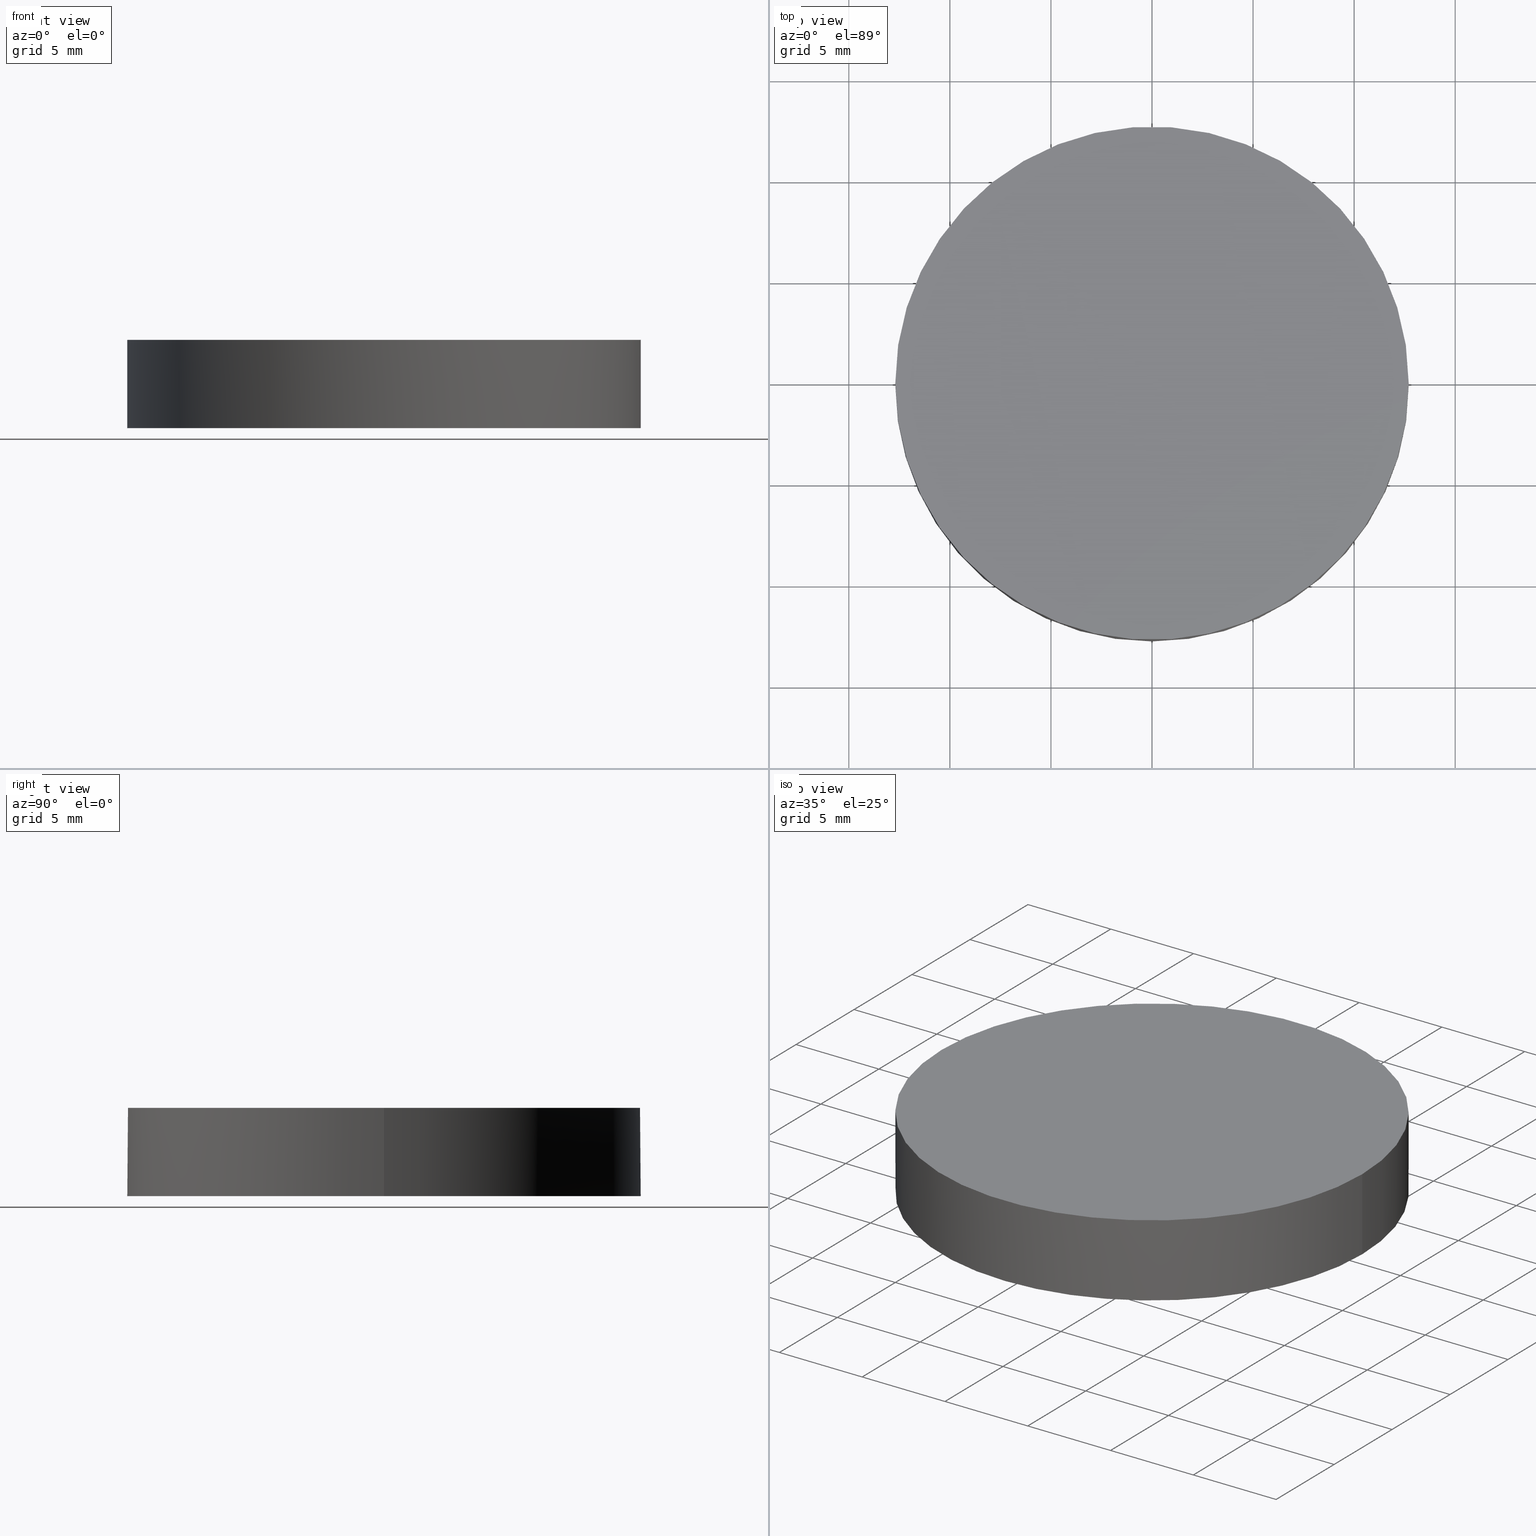
[diagram: canonical four-view strip — front | top / right | iso, engineering-drawing reading convention]
A machine part, canonical four-view strip (front | top / right | iso — engineering-drawing reading convention). The complete STEP part file that produces these views, byte-faithful:
ISO-10303-21;
HEADER;
FILE_DESCRIPTION (( 'STEP AP203' ),
    '1' );
FILE_NAME ('112-1215E UVFS pl-cv 25.4 F-125.STEP',
    '2019-01-16T15:04:51',
    ( '' ),
    ( '' ),
    'SwSTEP 2.0',
    'SolidWorks 2017',
    '' );
FILE_SCHEMA (( 'CONFIG_CONTROL_DESIGN' ));
ENDSEC;

DATA;
#1 = VECTOR ( 'NONE', #193, 1000.000000000000000 ) ;
#2 = CC_DESIGN_DATE_AND_TIME_ASSIGNMENT ( #230, #179, ( #86 ) ) ;
#3 =( BOUNDED_SURFACE ( )  B_SPLINE_SURFACE ( 3, 3, ( 
 ( #120, #194, #209, #82 ),
 ( #173, #22, #156, #138 ),
 ( #224, #40, #23, #6 ),
 ( #85, #208, #190, #103 ) ),
 .UNSPECIFIED., .F., .F., .F. ) 
 B_SPLINE_SURFACE_WITH_KNOTS ( ( 4, 4 ),
 ( 4, 4 ),
 ( 0.0000000000000000000, 1.000000000000000000 ),
 ( 0.0000000000000000000, 1.000000000000000000 ),
 .UNSPECIFIED. ) 
 GEOMETRIC_REPRESENTATION_ITEM ( )  RATIONAL_B_SPLINE_SURFACE ( (
 ( 1.000000000000000000, 0.9961030506548106400, 0.9961030506548106400, 1.000000000000000000),
 ( 0.9842725484696544000, 0.9804368882064077300, 0.9804368882064077300, 0.9842725484696544000),
 ( 0.9842725484696544000, 0.9804368882064077300, 0.9804368882064077300, 0.9842725484696544000),
 ( 1.000000000000000000, 0.9961030506548106400, 0.9961030506548106400, 1.000000000000000000) ) ) 
 REPRESENTATION_ITEM ( '' )  SURFACE ( )  );
#4 = PRODUCT_RELATED_PRODUCT_CATEGORY ( 'detail', '', ( #157 ) ) ;
#5 = CARTESIAN_POINT ( 'NONE',  ( -12.69999999999999900, 3.997792089092478900E-015, -1.370941700092870100 ) ) ;
#6 = CARTESIAN_POINT ( 'NONE',  ( 12.87707535386159200, -4.351775892739208700, -0.9230143240595769500 ) ) ;
#7 = CC_DESIGN_APPROVAL ( #221, ( #17 ) ) ;
#8 = CARTESIAN_POINT ( 'NONE',  ( 12.69999999999999900, 2.442490654175340100E-015, -1.370941700092870100 ) ) ;
#9 = ORIENTED_EDGE ( 'NONE', *, *, #29, .F. ) ;
#10 = APPLICATION_PROTOCOL_DEFINITION ( 'international standard', 'config_control_design', 1994, #124 ) ;
#11 = CARTESIAN_POINT ( 'NONE',  ( 0.0000000000000000000, 26.11199999999999800, 3.000000000000000000 ) ) ;
#12 = EDGE_CURVE ( 'NONE', #130, #113, #203, .T. ) ;
#13 = CIRCLE ( 'NONE', #231, 12.69999999999999900 ) ;
#14 = DIRECTION ( 'NONE',  ( 0.0000000000000000000, 0.0000000000000000000, 1.000000000000000000 ) ) ;
#15 = ORGANIZATION ( 'UNSPECIFIED', 'UNSPECIFIED', '' ) ;
#16 = LINE ( 'NONE', #8, #1 ) ;
#17 = PRODUCT_DEFINITION ( 'UNKNOWN', '', #58, #235 ) ;
#18 = ORIENTED_EDGE ( 'NONE', *, *, #21, .F. ) ;
#19 = DATE_AND_TIME ( #184, #152 ) ;
#20 = CIRCLE ( 'NONE', #135, 12.69999999999999900 ) ;
#21 = EDGE_CURVE ( 'NONE', #168, #74, #13, .T. ) ;
#22 = CARTESIAN_POINT ( 'NONE',  ( 4.334487914191679000, 4.351775892739211400, 0.4754479041532155800 ) ) ;
#23 = CARTESIAN_POINT ( 'NONE',  ( 8.643638908624963000, -4.351775892739209600, 0.007470142450247217000 ) ) ;
#24 = ADVANCED_FACE ( 'NONE', ( #167 ), #207, .F. ) ;
#25 = CARTESIAN_POINT ( 'NONE',  ( -1.421085471520200100E-014, 3.552713678800500100E-015, -59.50999999999999800 ) ) ;
#26 = DIRECTION ( 'NONE',  ( 1.000000000000000000, 0.0000000000000000000, 0.0000000000000000000 ) ) ;
#27 = CARTESIAN_POINT ( 'NONE',  ( -8.643638908625003800, -4.351775892739209600, 0.007470142450254155900 ) ) ;
#28 = APPROVAL_ROLE ( '' ) ;
#29 = EDGE_CURVE ( 'NONE', #168, #220, #202, .T. ) ;
#30 = APPROVAL_ROLE ( '' ) ;
#31 = PERSON_AND_ORGANIZATION ( #211, #15 ) ;
#32 = DIRECTION ( 'NONE',  ( 1.000000000000000000, 0.0000000000000000000, 0.0000000000000000000 ) ) ;
#33 = CARTESIAN_POINT ( 'NONE',  ( 12.69999999999999900, 2.442490654175340100E-015, -1.370941700092870100 ) ) ;
#34 = DIRECTION ( 'NONE',  ( 0.0000000000000000000, 0.0000000000000000000, 1.000000000000000000 ) ) ;
#35 = AXIS2_PLACEMENT_3D ( 'NONE', #25, #161, #210 ) ;
#36 = DATE_AND_TIME ( #148, #89 ) ;
#37 = AXIS2_PLACEMENT_3D ( 'NONE', #188, #79, #205 ) ;
#38 = PERSON_AND_ORGANIZATION ( #211, #15 ) ;
#39 = FACE_OUTER_BOUND ( 'NONE', #100, .T. ) ;
#40 = CARTESIAN_POINT ( 'NONE',  ( 4.334487914191678100, -4.351775892739209600, 0.4754479041532090300 ) ) ;
#41 = ADVANCED_BREP_SHAPE_REPRESENTATION ( '112-1215E UVFS pl-cv 25.4 F-125', ( #196, #232 ), #198 ) ;
#42 = CARTESIAN_POINT ( 'NONE',  ( -8.372831571571831300, -12.85000064494567900, -1.857226863961664000 ) ) ;
#43 = CARTESIAN_POINT ( 'NONE',  ( -8.643638908625003800, 4.351775892739211400, 0.007470142450260661100 ) ) ;
#44 = CARTESIAN_POINT ( 'NONE',  ( -2.428612866367529900E-014, -12.85000064494567900, -1.403910960856293900 ) ) ;
#45 = CC_DESIGN_DATE_AND_TIME_ASSIGNMENT ( #129, #140, ( #17 ) ) ;
#46 = DIRECTION ( 'NONE',  ( -0.0000000000000000000, -0.0000000000000000000, -1.000000000000000000 ) ) ;
#47 = COORDINATED_UNIVERSAL_TIME_OFFSET ( 2, 0, .AHEAD. ) ;
#48 = ORIENTED_EDGE ( 'NONE', *, *, #132, .T. ) ;
#49 = CARTESIAN_POINT ( 'NONE',  ( 4.996003610813200500E-016, 2.442490654175340100E-015, -1.370941700092870100 ) ) ;
#50 = PRODUCT_DEFINITION_SHAPE ( 'NONE', 'NONE',  #17 ) ;
#51 = PERSON_AND_ORGANIZATION_ROLE ( 'creator' ) ;
#52 = DIRECTION ( 'NONE',  ( 0.0000000000000000000, 0.0000000000000000000, 1.000000000000000000 ) ) ;
#53 = APPROVAL_STATUS ( 'not_yet_approved' ) ;
#54 = EDGE_LOOP ( 'NONE', ( #126, #218, #80, #228, #107 ) ) ;
#55 = CC_DESIGN_PERSON_AND_ORGANIZATION_ASSIGNMENT ( #115, #71, ( #157 ) ) ;
#56 = CC_DESIGN_SECURITY_CLASSIFICATION ( #86, ( #58 ) ) ;
#57 = DIRECTION ( 'NONE',  ( 0.0000000000000000000, 0.0000000000000000000, 1.000000000000000000 ) ) ;
#58 = PRODUCT_DEFINITION_FORMATION_WITH_SPECIFIED_SOURCE ( 'ANY', '', #157, .NOT_KNOWN. ) ;
#59 = CARTESIAN_POINT ( 'NONE',  ( -12.47363340973639200, 12.85000064494568200, -2.758559022837086900 ) ) ;
#60 = CIRCLE ( 'NONE', #63, 12.69999999999999900 ) ;
#61 = CARTESIAN_POINT ( 'NONE',  ( -4.334487914191719900, 4.351775892739212300, 0.4754479041532194100 ) ) ;
#62 = ORIENTED_EDGE ( 'NONE', *, *, #109, .F. ) ;
#63 = AXIS2_PLACEMENT_3D ( 'NONE', #49, #87, #162 ) ;
#64 = CARTESIAN_POINT ( 'NONE',  ( -12.47363340973639000, -12.85000064494567900, -2.758559022837094000 ) ) ;
#65 = APPROVAL_PERSON_ORGANIZATION ( #186, #204, #28 ) ;
#66 = ORIENTED_EDGE ( 'NONE', *, *, #96, .T. ) ;
#67 = DIRECTION ( 'NONE',  ( 1.000000000000000000, 0.0000000000000000000, 0.0000000000000000000 ) ) ;
#68 =( NAMED_UNIT ( * ) PLANE_ANGLE_UNIT ( ) SI_UNIT ( $, .RADIAN. ) );
#69 = APPROVAL_ROLE ( '' ) ;
#70 = PERSON_AND_ORGANIZATION_ROLE ( 'design_supplier' ) ;
#71 = PERSON_AND_ORGANIZATION_ROLE ( 'design_owner' ) ;
#72 = ORIENTED_EDGE ( 'NONE', *, *, #12, .F. ) ;
#73 = LOCAL_TIME ( 17, 4, 51.00000000000000000, #78 ) ;
#74 = VERTEX_POINT ( 'NONE', #5 ) ;
#75 = CARTESIAN_POINT ( 'NONE',  ( -8.372831571571831300, 12.85000064494568200, -1.857226863961656700 ) ) ;
#76 = APPROVAL_PERSON_ORGANIZATION ( #31, #144, #69 ) ;
#77 = AXIS2_PLACEMENT_3D ( 'NONE', #216, #229, #146 ) ;
#78 = COORDINATED_UNIVERSAL_TIME_OFFSET ( 2, 0, .AHEAD. ) ;
#79 = DIRECTION ( 'NONE',  ( -0.0000000000000000000, -0.0000000000000000000, -1.000000000000000000 ) ) ;
#80 = ORIENTED_EDGE ( 'NONE', *, *, #109, .T. ) ;
#81 = CARTESIAN_POINT ( 'NONE',  ( -12.87707535386163800, -4.351775892739208700, -0.9230143240595714000 ) ) ;
#82 = CARTESIAN_POINT ( 'NONE',  ( 12.47363340973635100, 12.85000064494568200, -2.758559022837093100 ) ) ;
#83 = LOCAL_TIME ( 17, 4, 51.00000000000000000, #47 ) ;
#84 = DIRECTION ( 'NONE',  ( 0.0000000000000000000, 0.0000000000000000000, 1.000000000000000000 ) ) ;
#85 = CARTESIAN_POINT ( 'NONE',  ( -1.421085471520199700E-014, -12.85000064494567900, -1.403910960856298500 ) ) ;
#86 = SECURITY_CLASSIFICATION ( '', '', #197 ) ;
#87 = DIRECTION ( 'NONE',  ( 0.0000000000000000000, 0.0000000000000000000, 1.000000000000000000 ) ) ;
#88 = PLANE ( 'NONE',  #92 ) ;
#89 = LOCAL_TIME ( 17, 4, 51.00000000000000000, #112 ) ;
#90 = CYLINDRICAL_SURFACE ( 'NONE', #183, 12.69999999999999900 ) ;
#91 = APPROVAL_STATUS ( 'not_yet_approved' ) ;
#92 = AXIS2_PLACEMENT_3D ( 'NONE', #11, #225, #180 ) ;
#93 = PERSON_AND_ORGANIZATION_ROLE ( 'classification_officer' ) ;
#94 = APPROVAL_DATE_TIME ( #19, #144 ) ;
#95 = PERSON_AND_ORGANIZATION ( #211, #15 ) ;
#96 = EDGE_CURVE ( 'NONE', #74, #130, #234, .T. ) ;
#97 = DIRECTION ( 'NONE',  ( 1.000000000000000000, 0.0000000000000000000, 0.0000000000000000000 ) ) ;
#98 = CC_DESIGN_PERSON_AND_ORGANIZATION_ASSIGNMENT ( #125, #93, ( #86 ) ) ;
#99 = DATE_AND_TIME ( #227, #73 ) ;
#100 = EDGE_LOOP ( 'NONE', ( #134, #72 ) ) ;
#101 = CC_DESIGN_APPROVAL ( #144, ( #86 ) ) ;
#102 = CARTESIAN_POINT ( 'NONE',  ( -12.87707535386163800, 4.351775892739210500, -0.9230143240595649600 ) ) ;
#103 = CARTESIAN_POINT ( 'NONE',  ( 12.47363340973634900, -12.85000064494567900, -2.758559022837099800 ) ) ;
#104 = ADVANCED_FACE ( 'NONE', ( #195 ), #3, .F. ) ;
#105 = CARTESIAN_POINT ( 'NONE',  ( -12.69999999999999900, 3.997792089092478900E-015, 3.000000000000000400 ) ) ;
#106 = APPROVAL_DATE_TIME ( #36, #221 ) ;
#107 = ORIENTED_EDGE ( 'NONE', *, *, #123, .T. ) ;
#108 = MECHANICAL_CONTEXT ( 'NONE', #124, 'mechanical' ) ;
#109 = EDGE_CURVE ( 'NONE', #220, #171, #20, .T. ) ;
#110 = APPLICATION_CONTEXT ( 'configuration controlled 3d designs of mechanical parts and assemblies' ) ;
#111 = CARTESIAN_POINT ( 'NONE',  ( -1.421085471520199700E-014, 12.70000000000000600, -1.370941700092875000 ) ) ;
#112 = COORDINATED_UNIVERSAL_TIME_OFFSET ( 2, 0, .AHEAD. ) ;
#113 = VERTEX_POINT ( 'NONE', #121 ) ;
#114 = EDGE_LOOP ( 'NONE', ( #9, #217, #62 ) ) ;
#115 = PERSON_AND_ORGANIZATION ( #211, #15 ) ;
#116 = CIRCLE ( 'NONE', #169, 12.69999999999999900 ) ;
#117 = CC_DESIGN_PERSON_AND_ORGANIZATION_ASSIGNMENT ( #38, #51, ( #17 ) ) ;
#118 = CARTESIAN_POINT ( 'NONE',  ( -4.198687339695238700, 12.85000064494568200, -1.403910960856287200 ) ) ;
#119 = FACE_OUTER_BOUND ( 'NONE', #153, .T. ) ;
#120 = CARTESIAN_POINT ( 'NONE',  ( -1.421085471520199700E-014, 12.85000064494568200, -1.403910960856291600 ) ) ;
#121 = CARTESIAN_POINT ( 'NONE',  ( 12.69999999999999900, 2.442490654175340100E-015, 3.000000000000000400 ) ) ;
#122 = CARTESIAN_POINT ( 'NONE',  ( -2.428612866367529600E-014, 4.351775892739211400, 0.4754479041532200800 ) ) ;
#123 = EDGE_CURVE ( 'NONE', #113, #130, #116, .T. ) ;
#124 = APPLICATION_CONTEXT ( 'configuration controlled 3d designs of mechanical parts and assemblies' ) ;
#125 = PERSON_AND_ORGANIZATION ( #211, #15 ) ;
#126 = ORIENTED_EDGE ( 'NONE', *, *, #96, .F. ) ;
#127 = APPLICATION_PROTOCOL_DEFINITION ( 'international standard', 'config_control_design', 1994, #110 ) ;
#128 = EDGE_CURVE ( 'NONE', #171, #113, #16, .T. ) ;
#129 = DATE_AND_TIME ( #199, #170 ) ;
#130 = VERTEX_POINT ( 'NONE', #105 ) ;
#131 = PERSON_AND_ORGANIZATION ( #211, #15 ) ;
#132 = EDGE_CURVE ( 'NONE', #171, #168, #60, .T. ) ;
#133 = APPROVAL_DATE_TIME ( #99, #204 ) ;
#134 = ORIENTED_EDGE ( 'NONE', *, *, #123, .F. ) ;
#135 = AXIS2_PLACEMENT_3D ( 'NONE', #136, #84, #26 ) ;
#136 = CARTESIAN_POINT ( 'NONE',  ( 4.996003610813200500E-016, 2.442490654175340100E-015, -1.370941700092870100 ) ) ;
#137 = CARTESIAN_POINT ( 'NONE',  ( -4.334487914191719000, -4.351775892739208700, 0.4754479041532131400 ) ) ;
#138 = CARTESIAN_POINT ( 'NONE',  ( 12.87707535386159400, 4.351775892739210500, -0.9230143240595705100 ) ) ;
#139 = CARTESIAN_POINT ( 'NONE',  ( 4.996003610813200500E-016, 2.442490654175340100E-015, 3.000000000000000400 ) ) ;
#140 = DATE_TIME_ROLE ( 'creation_date' ) ;
#141 = APPROVAL_PERSON_ORGANIZATION ( #177, #221, #30 ) ;
#142 = CYLINDRICAL_SURFACE ( 'NONE', #77, 12.69999999999999900 ) ;
#143 =( LENGTH_UNIT ( ) NAMED_UNIT ( * ) SI_UNIT ( .MILLI., .METRE. ) );
#144 = APPROVAL ( #91, 'UNSPECIFIED' ) ;
#145 = APPROVAL_STATUS ( 'not_yet_approved' ) ;
#146 = DIRECTION ( 'NONE',  ( 1.000000000000000000, 0.0000000000000000000, 0.0000000000000000000 ) ) ;
#147 = EDGE_CURVE ( 'NONE', #74, #220, #149, .T. ) ;
#148 = CALENDAR_DATE ( 2019, 16, 1 ) ;
#149 = CIRCLE ( 'NONE', #150, 12.69999999999999900 ) ;
#150 = AXIS2_PLACEMENT_3D ( 'NONE', #164, #14, #163 ) ;
#151 = CARTESIAN_POINT ( 'NONE',  ( 4.996003610813200500E-016, 2.442490654175340100E-015, -1.370941700092870100 ) ) ;
#152 = LOCAL_TIME ( 17, 4, 51.00000000000000000, #219 ) ;
#153 = EDGE_LOOP ( 'NONE', ( #48, #178, #66, #166, #206 ) ) ;
#154 = CARTESIAN_POINT ( 'NONE',  ( -12.69999999999999900, 3.997792089092478900E-015, -1.370941700092870100 ) ) ;
#155 = ADVANCED_FACE ( 'NONE', ( #119 ), #90, .T. ) ;
#156 = CARTESIAN_POINT ( 'NONE',  ( 8.643638908624963000, 4.351775892739211400, 0.007470142450253722300 ) ) ;
#157 = PRODUCT ( '112-1215E UVFS pl-cv 25.4 F-125', '112-1215E UVFS pl-cv 25.4 F-125', '', ( #108 ) ) ;
#158 = CARTESIAN_POINT ( 'NONE',  ( -4.198687339695237800, -12.85000064494567900, -1.403910960856294500 ) ) ;
#159 = ADVANCED_FACE ( 'NONE', ( #39 ), #88, .T. ) ;
#160 = ORIENTED_EDGE ( 'NONE', *, *, #147, .F. ) ;
#161 = DIRECTION ( 'NONE',  ( 1.000000000000000000, 0.0000000000000000000, 0.0000000000000000000 ) ) ;
#162 = DIRECTION ( 'NONE',  ( 1.000000000000000000, 0.0000000000000000000, 0.0000000000000000000 ) ) ;
#163 = DIRECTION ( 'NONE',  ( 1.000000000000000000, 0.0000000000000000000, 0.0000000000000000000 ) ) ;
#164 = CARTESIAN_POINT ( 'NONE',  ( 4.996003610813200500E-016, 2.442490654175340100E-015, -1.370941700092870100 ) ) ;
#165 = CARTESIAN_POINT ( 'NONE',  ( 0.0000000000000000000, 0.0000000000000000000, 0.0000000000000000000 ) ) ;
#166 = ORIENTED_EDGE ( 'NONE', *, *, #12, .T. ) ;
#167 = FACE_OUTER_BOUND ( 'NONE', #212, .T. ) ;
#168 = VERTEX_POINT ( 'NONE', #111 ) ;
#169 = AXIS2_PLACEMENT_3D ( 'NONE', #139, #46, #213 ) ;
#170 = LOCAL_TIME ( 17, 4, 51.00000000000000000, #222 ) ;
#171 = VERTEX_POINT ( 'NONE', #33 ) ;
#172 = DIRECTION ( 'NONE',  ( 0.0000000000000000000, 0.0000000000000000000, 1.000000000000000000 ) ) ;
#173 = CARTESIAN_POINT ( 'NONE',  ( -1.421085471520199900E-014, 4.351775892739210500, 0.4754479041532154700 ) ) ;
#174 = SHAPE_DEFINITION_REPRESENTATION ( #50, #41 ) ;
#175 = CARTESIAN_POINT ( 'NONE',  ( -1.421085471520199700E-014, -12.69999999999999900, -1.370941700092875000 ) ) ;
#176 = CARTESIAN_POINT ( 'NONE',  ( 4.996003610813200500E-016, 2.442490654175340100E-015, -1.370941700092870100 ) ) ;
#177 = PERSON_AND_ORGANIZATION ( #211, #15 ) ;
#178 = ORIENTED_EDGE ( 'NONE', *, *, #21, .T. ) ;
#179 = DATE_TIME_ROLE ( 'classification_date' ) ;
#180 = DIRECTION ( 'NONE',  ( 1.000000000000000000, 0.0000000000000000000, -0.0000000000000000000 ) ) ;
#181 = PERSON_AND_ORGANIZATION_ROLE ( 'creator' ) ;
#182 = CALENDAR_DATE ( 2019, 16, 1 ) ;
#183 = AXIS2_PLACEMENT_3D ( 'NONE', #176, #34, #67 ) ;
#184 = CALENDAR_DATE ( 2019, 16, 1 ) ;
#185 = CARTESIAN_POINT ( 'NONE',  ( -2.428612866367529900E-014, 12.85000064494568200, -1.403910960856286500 ) ) ;
#186 = PERSON_AND_ORGANIZATION ( #211, #15 ) ;
#187 = ORIENTED_EDGE ( 'NONE', *, *, #29, .T. ) ;
#188 = CARTESIAN_POINT ( 'NONE',  ( 4.996003610813200500E-016, 2.442490654175340100E-015, 3.000000000000000400 ) ) ;
#189 = CC_DESIGN_APPROVAL ( #204, ( #58 ) ) ;
#190 = CARTESIAN_POINT ( 'NONE',  ( 8.372831571571790500, -12.85000064494567900, -1.857226863961670900 ) ) ;
#191 = CARTESIAN_POINT ( 'NONE',  ( -2.428612866367529600E-014, -4.351775892739207800, 0.4754479041532137500 ) ) ;
#192 = UNCERTAINTY_MEASURE_WITH_UNIT (LENGTH_MEASURE( 1.000000000000000100E-005 ), #143, 'distance_accuracy_value', 'NONE');
#193 = DIRECTION ( 'NONE',  ( 0.0000000000000000000, 0.0000000000000000000, 1.000000000000000000 ) ) ;
#194 = CARTESIAN_POINT ( 'NONE',  ( 4.198687339695200500, 12.85000064494568200, -1.403910960856291600 ) ) ;
#195 = FACE_OUTER_BOUND ( 'NONE', #114, .T. ) ;
#196 = MANIFOLD_SOLID_BREP ( 'Imported1', #200 ) ;
#197 = SECURITY_CLASSIFICATION_LEVEL ( 'unclassified' ) ;
#198 =( GEOMETRIC_REPRESENTATION_CONTEXT ( 3 ) GLOBAL_UNCERTAINTY_ASSIGNED_CONTEXT ( ( #192 ) ) GLOBAL_UNIT_ASSIGNED_CONTEXT ( ( #143, #68, #215 ) ) REPRESENTATION_CONTEXT ( 'NONE', 'WORKASPACE' ) );
#199 = CALENDAR_DATE ( 2019, 16, 1 ) ;
#200 = CLOSED_SHELL ( 'NONE', ( #24, #155, #104, #214, #159 ) ) ;
#201 = CC_DESIGN_PERSON_AND_ORGANIZATION_ASSIGNMENT ( #131, #70, ( #58 ) ) ;
#202 = CIRCLE ( 'NONE', #35, 59.50999999999999800 ) ;
#203 = CIRCLE ( 'NONE', #37, 12.69999999999999900 ) ;
#204 = APPROVAL ( #53, 'UNSPECIFIED' ) ;
#205 = DIRECTION ( 'NONE',  ( 1.000000000000000000, 0.0000000000000000000, 0.0000000000000000000 ) ) ;
#206 = ORIENTED_EDGE ( 'NONE', *, *, #128, .F. ) ;
#207 =( BOUNDED_SURFACE ( )  B_SPLINE_SURFACE ( 3, 3, ( 
 ( #59, #75, #118, #185 ),
 ( #102, #43, #61, #122 ),
 ( #81, #27, #137, #191 ),
 ( #64, #42, #158, #44 ) ),
 .UNSPECIFIED., .F., .F., .F. ) 
 B_SPLINE_SURFACE_WITH_KNOTS ( ( 4, 4 ),
 ( 4, 4 ),
 ( 0.0000000000000000000, 1.000000000000000000 ),
 ( 0.0000000000000000000, 1.000000000000000000 ),
 .UNSPECIFIED. ) 
 GEOMETRIC_REPRESENTATION_ITEM ( )  RATIONAL_B_SPLINE_SURFACE ( (
 ( 1.000000000000000000, 0.9961030506548106400, 0.9961030506548106400, 1.000000000000000000),
 ( 0.9842725484696544000, 0.9804368882064077300, 0.9804368882064077300, 0.9842725484696544000),
 ( 0.9842725484696544000, 0.9804368882064077300, 0.9804368882064077300, 0.9842725484696544000),
 ( 1.000000000000000000, 0.9961030506548106400, 0.9961030506548106400, 1.000000000000000000) ) ) 
 REPRESENTATION_ITEM ( '' )  SURFACE ( )  );
#208 = CARTESIAN_POINT ( 'NONE',  ( 4.198687339695200500, -12.85000064494567900, -1.403910960856298500 ) ) ;
#209 = CARTESIAN_POINT ( 'NONE',  ( 8.372831571571790500, 12.85000064494568200, -1.857226863961664300 ) ) ;
#210 = DIRECTION ( 'NONE',  ( 0.0000000000000000000, 1.000000000000000000, -2.332009377888499000E-016 ) ) ;
#211 = PERSON ( 'UNSPECIFIED', 'UNSPECIFIED', 'UNSPECIFIED', ('UNSPECIFIED'), ('UNSPECIFIED'), ('UNSPECIFIED') ) ;
#212 = EDGE_LOOP ( 'NONE', ( #18, #187, #160 ) ) ;
#213 = DIRECTION ( 'NONE',  ( 1.000000000000000000, 0.0000000000000000000, 0.0000000000000000000 ) ) ;
#214 = ADVANCED_FACE ( 'NONE', ( #233 ), #142, .T. ) ;
#215 =( NAMED_UNIT ( * ) SI_UNIT ( $, .STERADIAN. ) SOLID_ANGLE_UNIT ( ) );
#216 = CARTESIAN_POINT ( 'NONE',  ( 4.996003610813200500E-016, 2.442490654175340100E-015, -1.370941700092870100 ) ) ;
#217 = ORIENTED_EDGE ( 'NONE', *, *, #132, .F. ) ;
#218 = ORIENTED_EDGE ( 'NONE', *, *, #147, .T. ) ;
#219 = COORDINATED_UNIVERSAL_TIME_OFFSET ( 2, 0, .AHEAD. ) ;
#220 = VERTEX_POINT ( 'NONE', #175 ) ;
#221 = APPROVAL ( #145, 'UNSPECIFIED' ) ;
#222 = COORDINATED_UNIVERSAL_TIME_OFFSET ( 2, 0, .AHEAD. ) ;
#223 = VECTOR ( 'NONE', #172, 1000.000000000000000 ) ;
#224 = CARTESIAN_POINT ( 'NONE',  ( -1.421085471520199900E-014, -4.351775892739208700, 0.4754479041532089800 ) ) ;
#225 = DIRECTION ( 'NONE',  ( 0.0000000000000000000, 0.0000000000000000000, 1.000000000000000000 ) ) ;
#226 = CC_DESIGN_PERSON_AND_ORGANIZATION_ASSIGNMENT ( #95, #181, ( #58 ) ) ;
#227 = CALENDAR_DATE ( 2019, 16, 1 ) ;
#228 = ORIENTED_EDGE ( 'NONE', *, *, #128, .T. ) ;
#229 = DIRECTION ( 'NONE',  ( 0.0000000000000000000, 0.0000000000000000000, 1.000000000000000000 ) ) ;
#230 = DATE_AND_TIME ( #182, #83 ) ;
#231 = AXIS2_PLACEMENT_3D ( 'NONE', #151, #57, #97 ) ;
#232 = AXIS2_PLACEMENT_3D ( 'NONE', #165, #52, #32 ) ;
#233 = FACE_OUTER_BOUND ( 'NONE', #54, .T. ) ;
#234 = LINE ( 'NONE', #154, #223 ) ;
#235 = DESIGN_CONTEXT ( 'detailed design', #110, 'design' ) ;
ENDSEC;
END-ISO-10303-21;
